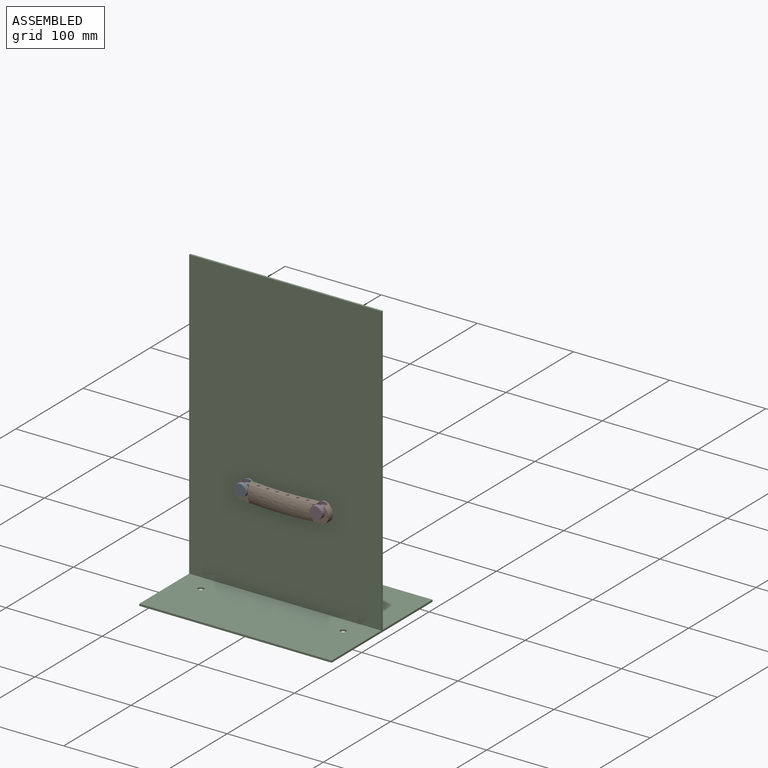
[diagram: assembled view]
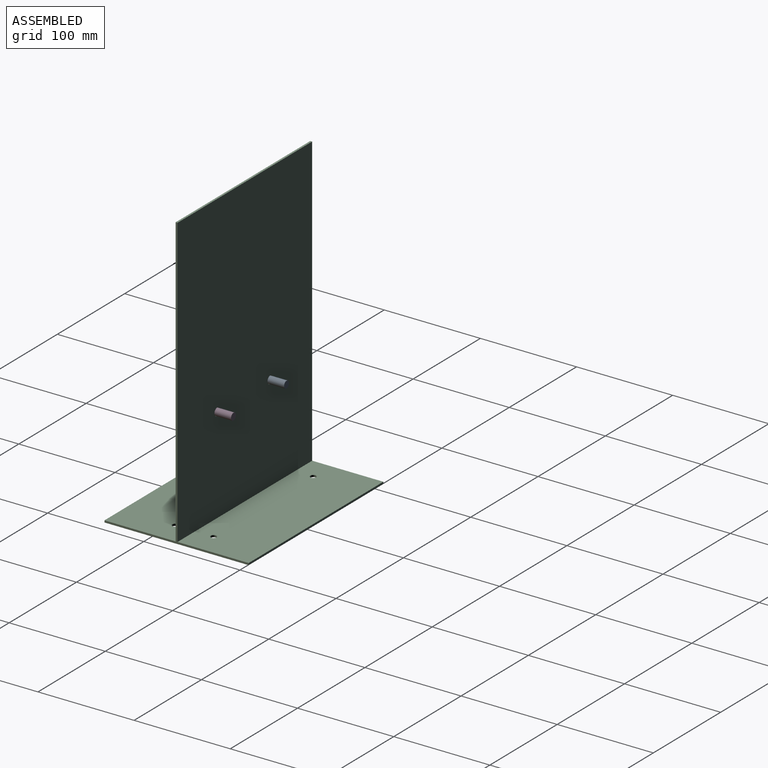
[diagram: assembled view, second angle]
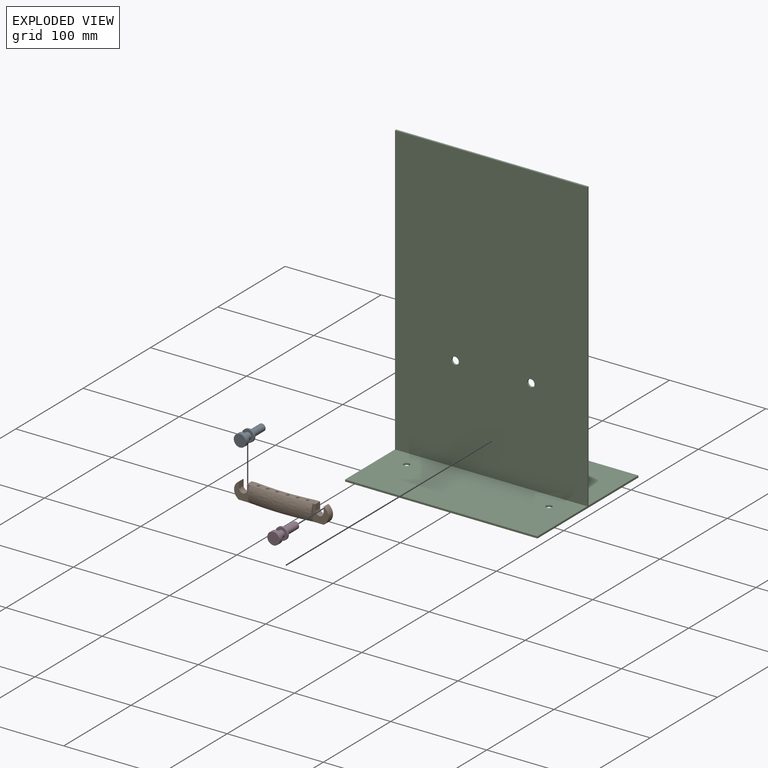
[diagram: exploded view]
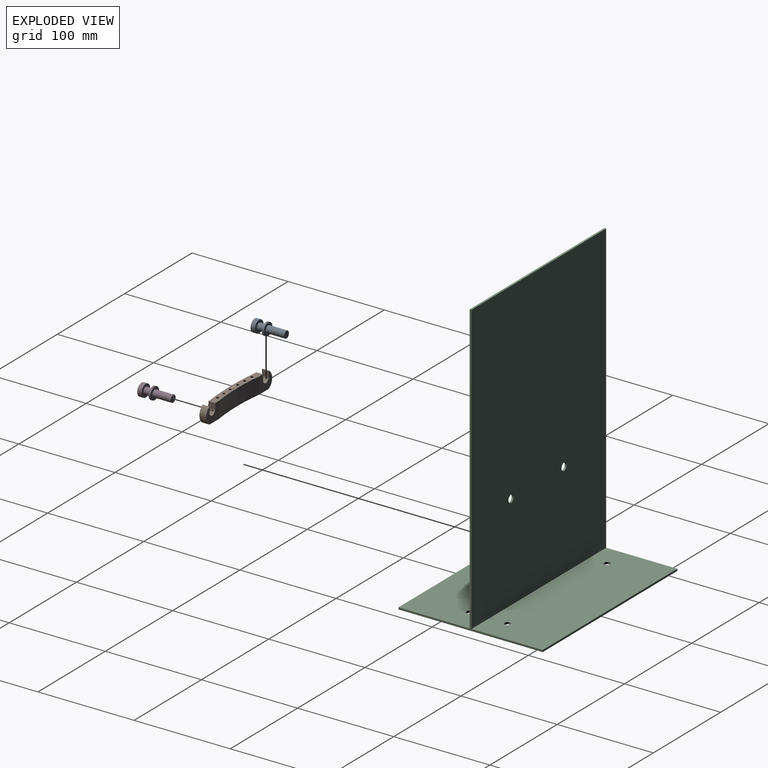
[diagram: exploded view, second angle]
ASSEMBLY  parts=4 mates=3
PART A: 9 faces, bbox 12.8x12.8x33 mm
  f0: cylinder r=3.62mm len=7.3mm, axis (0,0,-1), area 166.3mm2, adj f3,f6
  f1: cylinder r=6.4mm len=12.8mm, axis (0,0,-1), area 183mm2, adj f2,f3
  f2: plane 12.8x12.8mm, normal (0,0,1), area 128.7mm2, adj f1
  f3: plane 12.8x12.8mm, normal (0,0,-1), area 87.4mm2, adj f0,f1
  f4: cylinder r=6.4mm len=12.8mm, axis (0,0,1), area 80.4mm2, adj f5,f6
  f5: plane 12.8x12.8mm, normal (0,0,-1), area 87.4mm2, adj f4,f7
  f6: plane 12.8x12.8mm, normal (0,0,1), area 87.4mm2, adj f0,f4
  f7: cylinder r=3.62mm len=19.12mm, axis (0,0,1), area 435.5mm2, adj f5,f8
  f8: plane 7.25x7.25mm, normal (0,0,-1), area 41.3mm2, adj f7
PART B: 36 faces, bbox 98x13.1x17 mm
  f0: plane 88.1x9mm, normal (0,0,-1), area 494mm2, adj f3,f4,f11,f12,f14,f15,f16,f17
  f1: plane 71.1x9mm, normal (0,0,1), area 462.5mm2, adj f3,f7,f8,f12,f14,f15,f16,f17
  f2: plane 17x2.5mm, normal (-1,0,0), area 28.8mm2, adj f15,f17
  f3: plane 19.02x17mm, normal (0,-1,0), area 221.2mm2, adj f0,f1,f4,f5,f6,f7,f16
  f4: cylinder r=9.75mm len=17mm, axis (0,1,0), area 144.5mm2, adj f0,f3,f5,f14
  f5: plane 7x6.5mm, normal (-1,0,0), area 45.5mm2, adj f3,f4,f6,f14
  f6: cylinder r=4.32mm len=8.5mm, axis (0,1,0), area 83.8mm2, adj f3,f5,f7,f14
  f7: plane 7x6.5mm, normal (1,0,0), area 45.5mm2, adj f1,f3,f6,f14
  f8: plane 7x6.5mm, normal (-1,0,0), area 45.5mm2, adj f1,f9,f12,f15
  f9: cylinder r=4.32mm len=8.5mm, axis (0,1,0), area 83.8mm2, adj f8,f10,f12,f15
  f10: plane 7x6.5mm, normal (1,0,0), area 45.5mm2, adj f9,f11,f12,f15
  f11: cylinder r=9.75mm len=17mm, axis (0,1,0), area 144.5mm2, adj f0,f10,f12,f15
  f12: plane 19.02x17mm, normal (0,-1,0), area 221.2mm2, adj f0,f1,f8,f9,f10,f11,f16
  f13: plane 17x2.5mm, normal (1,0,0), area 28.8mm2, adj f14,f17
  f14: plane 17x16.02mm, normal (0,1,0), area 170.2mm2, adj f0,f1,f4,f5,f6,f7,f13
  f15: plane 17x16.02mm, normal (0,1,0), area 170.2mm2, adj f0,f1,f2,f8,f9,f10,f11
  f16: cylinder r=223.71mm len=60mm, axis (0,0,-1), area 1023.1mm2, adj f0,f1,f3,f12
  f17: bspline ~66.82x17mm, area 1187.6mm2, adj f0,f1,f2,f13
  f18: cylinder r=2.62mm len=5.25mm, axis (0,0,1), area 61.9mm2, adj f0,f25
  f19: cylinder r=2.62mm len=5.25mm, axis (0,0,1), area 61.9mm2, adj f0,f27
  f20: cylinder r=2.62mm len=5.25mm, axis (0,0,1), area 61.9mm2, adj f0,f29
  f21: cylinder r=2.62mm len=5.25mm, axis (0,0,1), area 61.9mm2, adj f0,f35
  f22: cylinder r=2.62mm len=5.25mm, axis (0,0,1), area 61.9mm2, adj f0,f33
  f23: cylinder r=2.62mm len=5.25mm, axis (0,0,1), area 61.9mm2, adj f0,f31
  f24: cylinder r=1.5mm len=13.25mm, axis (0,0,1), area 124.9mm2, adj f1,f25
  f25: plane 5.25x5.25mm, normal (0,0,-1), area 14.6mm2, adj f18,f24
  f26: cylinder r=1.5mm len=13.25mm, axis (0,0,1), area 124.9mm2, adj f1,f27
  f27: plane 5.25x5.25mm, normal (0,0,-1), area 14.6mm2, adj f19,f26
  f28: cylinder r=1.5mm len=13.25mm, axis (0,0,1), area 124.9mm2, adj f1,f29
  f29: plane 5.25x5.25mm, normal (0,0,-1), area 14.6mm2, adj f20,f28
  f30: cylinder r=1.5mm len=13.25mm, axis (0,0,1), area 124.9mm2, adj f1,f31
  f31: plane 5.25x5.25mm, normal (0,0,-1), area 14.6mm2, adj f23,f30
  f32: cylinder r=1.5mm len=13.25mm, axis (0,0,1), area 124.9mm2, adj f1,f33
  f33: plane 5.25x5.25mm, normal (0,0,-1), area 14.6mm2, adj f22,f32
  f34: cylinder r=1.5mm len=13.25mm, axis (0,0,1), area 124.9mm2, adj f1,f35
  f35: plane 5.25x5.25mm, normal (0,0,-1), area 14.6mm2, adj f21,f34
PART C: 16 faces, bbox 200x150x302 mm
  f0: plane 300x200mm, normal (0,1,0), area 59906.9mm2, adj f2,f5,f7,f9,f14,f15
  f1: plane 300x200mm, normal (0,-1,0), area 59906.9mm2, adj f3,f5,f7,f9,f14,f15
  f2: plane 200x74mm, normal (0,0,1), area 14743.5mm2, adj f0,f5,f7,f8,f11,f12
  f3: plane 200x74mm, normal (0,0,1), area 14743.5mm2, adj f1,f5,f6,f7,f10,f13
  f4: plane 200x150mm, normal (0,0,-1), area 29886.9mm2, adj f5,f6,f7,f8,f10,f11,f12,f13
  f5: plane 302x150mm, normal (-1,0,0), area 900mm2, adj f0,f1,f2,f3,f4,f6,f8,f9
  f6: plane 200x2mm, normal (0,-1,0), area 400mm2, adj f3,f4,f5,f7
  f7: plane 302x150mm, normal (1,0,0), area 900mm2, adj f0,f1,f2,f3,f4,f6,f8,f9
  f8: plane 200x2mm, normal (0,1,0), area 400mm2, adj f2,f4,f5,f7
  f9: plane 200x2mm, normal (0,0,1), area 400mm2, adj f0,f1,f5,f7
  f10: cylinder r=3mm len=6mm, axis (0,0,1), area 37.7mm2, adj f3,f4
  f11: cylinder r=3mm len=6mm, axis (0,0,1), area 37.7mm2, adj f2,f4
  f12: cylinder r=3mm len=6mm, axis (0,0,1), area 37.7mm2, adj f2,f4
  f13: cylinder r=3mm len=6mm, axis (0,0,1), area 37.7mm2, adj f3,f4
  f14: cylinder r=3.85mm len=7.7mm, axis (0,1,0), area 48.4mm2, adj f0,f1
  f15: cylinder r=3.85mm len=7.7mm, axis (0,1,0), area 48.4mm2, adj f0,f1
PART D: same geometry as A
PLACE A rot(axis=(0,-0.71,0.71),180deg) t=(-39.36,29.8,76.68)mm
PLACE B rot(axis=(0,0,1),180deg) t=(1.44,17.5,65.38)mm
PLACE C t=(-2.41,44.5,-25.32)mm
PLACE D rot(axis=(1,0,0),90deg) t=(39.44,29.8,76.68)mm
MATE fastened B.f6 <-> A.f0  axis (0,-1,0) through (-39.36,22.5,76.68)mm
MATE fastened D.f0 <-> C.f15  axis (0,-1,0) through (39.44,31.8,76.68)mm
MATE fastened C.f14 <-> A.f0  axis (0,-1,0) through (-39.36,31.8,76.68)mm
